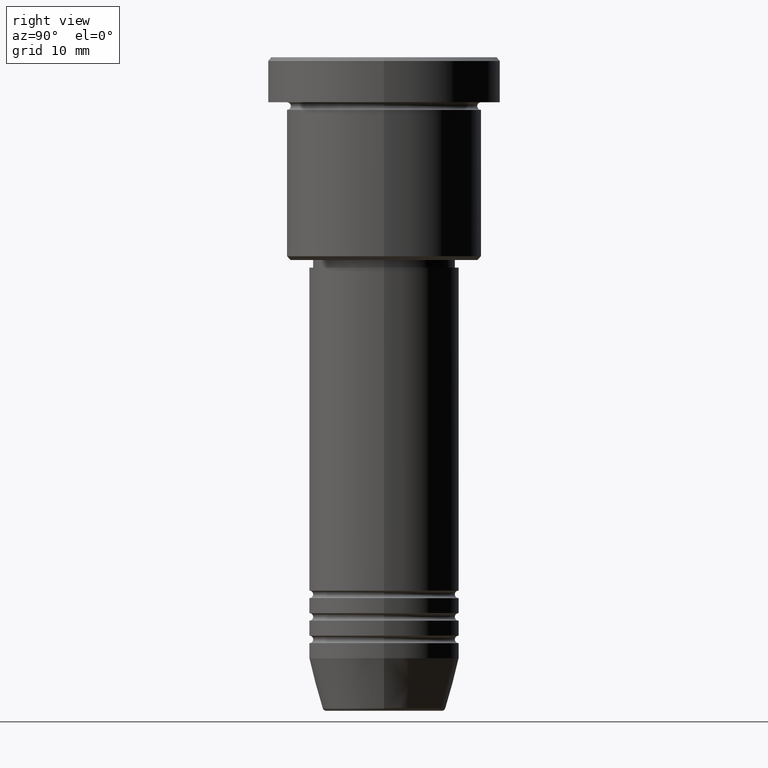
[diagram: clean part render]
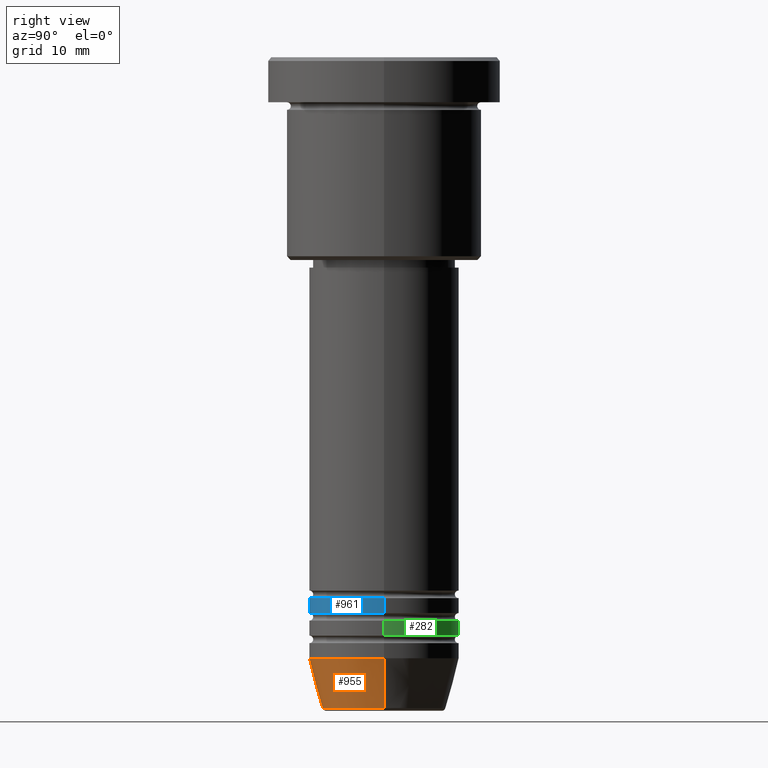
[diagram: same view with three faces highlighted in distinct colors, each labeled with its STEP entity id]
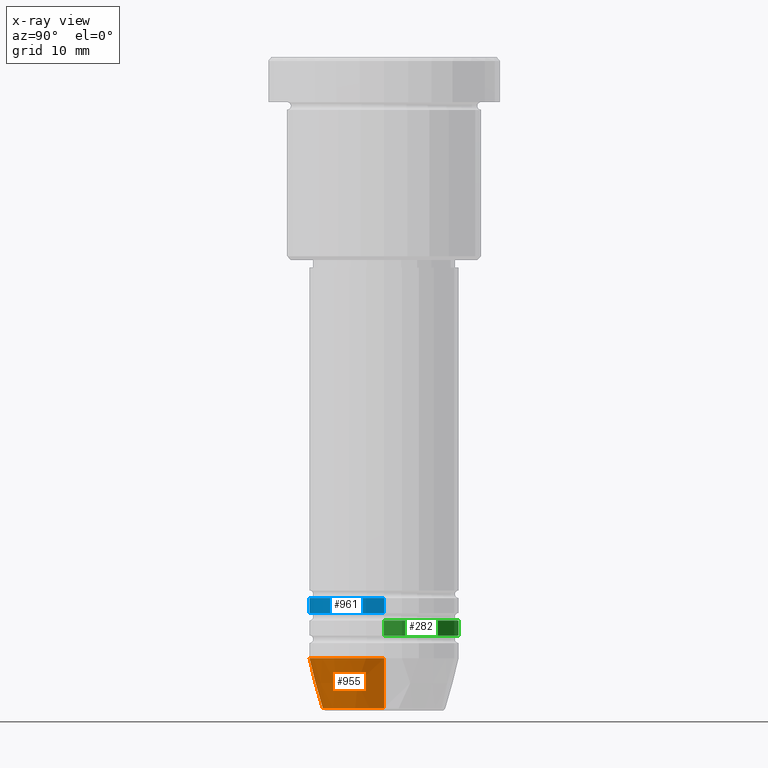
[diagram: x-ray of the same camera — body ghosted, the three highlighted faces saturated]
A machine part, right view with three faces highlighted in distinct colors.
The next image is the same camera in x-ray (body ghosted, the three faces saturated) — at least one of them is partly hidden behind the body in this view.
Their STEP definitions:

[orange] entity #955 — the highlighted conical surface has half-angle 15 deg.
#16 = DIRECTION ( 'NONE',  ( 1.000000000000000000, 0.000000000000000000, 0.000000000000000000 ) ) ;
#25 = CIRCLE ( 'NONE', #289, 10.00000000000000000 ) ;
#37 = CARTESIAN_POINT ( 'NONE',  ( 8.223655072137187716, 0.000000000000000000, -86.62940952255125637 ) ) ;
#69 = ORIENTED_EDGE ( 'NONE', *, *, #1069, .T. ) ;
#101 = VERTEX_POINT ( 'NONE', #268 ) ;
#118 = CARTESIAN_POINT ( 'NONE',  ( 10.00000000000000000, 0.000000000000000000, -79.99999999999998579 ) ) ;
#128 = DIRECTION ( 'NONE',  ( -0.000000000000000000, -0.000000000000000000, 1.000000000000000000 ) ) ;
#155 = VERTEX_POINT ( 'NONE', #37 ) ;
#171 = CIRCLE ( 'NONE', #341, 8.223655072137187716 ) ;
#188 = DIRECTION ( 'NONE',  ( -0.000000000000000000, -0.000000000000000000, 1.000000000000000000 ) ) ;
#267 = CARTESIAN_POINT ( 'NONE',  ( -10.00000000000000000, 1.224646799147353256E-15, -79.99999999999998579 ) ) ;
#268 = CARTESIAN_POINT ( 'NONE',  ( -10.00000000000000000, 1.224646799147353256E-15, -79.99999999999998579 ) ) ;
#275 = DIRECTION ( 'NONE',  ( -0.2588190451025213501, 3.169619151431772337E-17, 0.9659258262890680902 ) ) ;
#289 = AXIS2_PLACEMENT_3D ( 'NONE', #335, #713, #700 ) ;
#329 = EDGE_CURVE ( 'NONE', #1050, #101, #803, .T. ) ;
#331 = CARTESIAN_POINT ( 'NONE',  ( -8.223655072137187716, 1.115877042642911856E-15, -86.62940952255125637 ) ) ;
#335 = CARTESIAN_POINT ( 'NONE',  ( 0.000000000000000000, 0.000000000000000000, -79.99999999999998579 ) ) ;
#341 = AXIS2_PLACEMENT_3D ( 'NONE', #1101, #188, #16 ) ;
#473 = ORIENTED_EDGE ( 'NONE', *, *, #1168, .F. ) ;
#509 = VECTOR ( 'NONE', #275, 1000.000000000000000 ) ;
#527 = CARTESIAN_POINT ( 'NONE',  ( 10.00000000000000000, 0.000000000000000000, -79.99999999999998579 ) ) ;
#591 = EDGE_LOOP ( 'NONE', ( #874, #1071, #69, #473 ) ) ;
#599 = DIRECTION ( 'NONE',  ( 0.2588190451025213501, 0.000000000000000000, 0.9659258262890680902 ) ) ;
#623 = LINE ( 'NONE', #527, #894 ) ;
#637 = FACE_OUTER_BOUND ( 'NONE', #591, .T. ) ;
#664 = CARTESIAN_POINT ( 'NONE',  ( 0.000000000000000000, 0.000000000000000000, -79.99999999999998579 ) ) ;
#700 = DIRECTION ( 'NONE',  ( 1.000000000000000000, 0.000000000000000000, 0.000000000000000000 ) ) ;
#713 = DIRECTION ( 'NONE',  ( -0.000000000000000000, -0.000000000000000000, 1.000000000000000000 ) ) ;
#770 = AXIS2_PLACEMENT_3D ( 'NONE', #664, #128, #1043 ) ;
#803 = LINE ( 'NONE', #267, #509 ) ;
#874 = ORIENTED_EDGE ( 'NONE', *, *, #329, .F. ) ;
#894 = VECTOR ( 'NONE', #599, 1000.000000000000000 ) ;
#902 = EDGE_CURVE ( 'NONE', #1050, #155, #171, .T. ) ;
#955 = ADVANCED_FACE ( 'NONE', ( #637 ), #1073, .T. ) ;
#1037 = VERTEX_POINT ( 'NONE', #118 ) ;
#1043 = DIRECTION ( 'NONE',  ( 1.000000000000000000, 0.000000000000000000, 0.000000000000000000 ) ) ;
#1050 = VERTEX_POINT ( 'NONE', #331 ) ;
#1069 = EDGE_CURVE ( 'NONE', #155, #1037, #623, .T. ) ;
#1071 = ORIENTED_EDGE ( 'NONE', *, *, #902, .T. ) ;
#1073 = CONICAL_SURFACE ( 'NONE', #770, 10.00000000000000000, 0.2617993877991500740 ) ;
#1101 = CARTESIAN_POINT ( 'NONE',  ( 0.000000000000000000, 0.000000000000000000, -86.62940952255125637 ) ) ;
#1168 = EDGE_CURVE ( 'NONE', #101, #1037, #25, .T. ) ;

[blue] entity #961 — the highlighted cylindrical surface (partial cylindrical patch) has radius 10 mm, axis along (-0, -0, 1).
#2 = CARTESIAN_POINT ( 'NONE',  ( 10.00000000000000000, 0.000000000000000000, 0.000000000000000000 ) ) ;
#48 = FACE_OUTER_BOUND ( 'NONE', #67, .T. ) ;
#54 = ORIENTED_EDGE ( 'NONE', *, *, #125, .T. ) ;
#67 = EDGE_LOOP ( 'NONE', ( #315, #430, #54, #327 ) ) ;
#78 = DIRECTION ( 'NONE',  ( 1.000000000000000000, 0.000000000000000000, 0.000000000000000000 ) ) ;
#125 = EDGE_CURVE ( 'NONE', #547, #860, #362, .T. ) ;
#134 = CIRCLE ( 'NONE', #652, 10.00000000000000000 ) ;
#138 = CARTESIAN_POINT ( 'NONE',  ( 10.00000000000000000, 0.000000000000000000, -73.99999999999997158 ) ) ;
#158 = DIRECTION ( 'NONE',  ( 1.000000000000000000, 0.000000000000000000, 0.000000000000000000 ) ) ;
#233 = DIRECTION ( 'NONE',  ( -0.000000000000000000, -0.000000000000000000, 1.000000000000000000 ) ) ;
#236 = VERTEX_POINT ( 'NONE', #366 ) ;
#315 = ORIENTED_EDGE ( 'NONE', *, *, #802, .F. ) ;
#321 = CIRCLE ( 'NONE', #1030, 10.00000000000000000 ) ;
#324 = CARTESIAN_POINT ( 'NONE',  ( -10.00000000000000000, 1.224646799147353256E-15, 0.000000000000000000 ) ) ;
#327 = ORIENTED_EDGE ( 'NONE', *, *, #522, .F. ) ;
#345 = CARTESIAN_POINT ( 'NONE',  ( 10.00000000000000000, 0.000000000000000000, -71.99999999999997158 ) ) ;
#362 = LINE ( 'NONE', #2, #1093 ) ;
#366 = CARTESIAN_POINT ( 'NONE',  ( -10.00000000000000000, 1.224646799147353256E-15, -73.99999999999997158 ) ) ;
#404 = LINE ( 'NONE', #324, #1072 ) ;
#430 = ORIENTED_EDGE ( 'NONE', *, *, #1147, .T. ) ;
#480 = VERTEX_POINT ( 'NONE', #671 ) ;
#517 = CARTESIAN_POINT ( 'NONE',  ( 0.000000000000000000, 0.000000000000000000, -71.99999999999997158 ) ) ;
#522 = EDGE_CURVE ( 'NONE', #480, #860, #134, .T. ) ;
#539 = DIRECTION ( 'NONE',  ( 1.000000000000000000, 0.000000000000000000, 0.000000000000000000 ) ) ;
#547 = VERTEX_POINT ( 'NONE', #138 ) ;
#652 = AXIS2_PLACEMENT_3D ( 'NONE', #517, #1003, #158 ) ;
#671 = CARTESIAN_POINT ( 'NONE',  ( -10.00000000000000000, 1.224646799147353256E-15, -71.99999999999997158 ) ) ;
#744 = AXIS2_PLACEMENT_3D ( 'NONE', #1150, #897, #539 ) ;
#802 = EDGE_CURVE ( 'NONE', #236, #480, #404, .T. ) ;
#856 = CYLINDRICAL_SURFACE ( 'NONE', #744, 10.00000000000000000 ) ;
#860 = VERTEX_POINT ( 'NONE', #345 ) ;
#897 = DIRECTION ( 'NONE',  ( -0.000000000000000000, -0.000000000000000000, 1.000000000000000000 ) ) ;
#961 = ADVANCED_FACE ( 'NONE', ( #48 ), #856, .T. ) ;
#970 = CARTESIAN_POINT ( 'NONE',  ( 0.000000000000000000, 0.000000000000000000, -73.99999999999997158 ) ) ;
#1003 = DIRECTION ( 'NONE',  ( -0.000000000000000000, -0.000000000000000000, 1.000000000000000000 ) ) ;
#1004 = DIRECTION ( 'NONE',  ( -0.000000000000000000, -0.000000000000000000, 1.000000000000000000 ) ) ;
#1030 = AXIS2_PLACEMENT_3D ( 'NONE', #970, #1162, #78 ) ;
#1072 = VECTOR ( 'NONE', #233, 1000.000000000000000 ) ;
#1093 = VECTOR ( 'NONE', #1004, 1000.000000000000000 ) ;
#1147 = EDGE_CURVE ( 'NONE', #236, #547, #321, .T. ) ;
#1150 = CARTESIAN_POINT ( 'NONE',  ( 0.000000000000000000, 0.000000000000000000, 0.000000000000000000 ) ) ;
#1162 = DIRECTION ( 'NONE',  ( -0.000000000000000000, -0.000000000000000000, 1.000000000000000000 ) ) ;

[green] entity #282 — the highlighted cylindrical surface (partial cylindrical patch) has radius 10 mm, axis along (-0, -0, 1).
#29 = DIRECTION ( 'NONE',  ( -0.000000000000000000, -0.000000000000000000, 1.000000000000000000 ) ) ;
#60 = LINE ( 'NONE', #1041, #848 ) ;
#84 = CARTESIAN_POINT ( 'NONE',  ( -10.00000000000000000, 1.224646799147353256E-15, -74.99999999999997158 ) ) ;
#86 = DIRECTION ( 'NONE',  ( 1.000000000000000000, 0.000000000000000000, 0.000000000000000000 ) ) ;
#98 = LINE ( 'NONE', #460, #670 ) ;
#110 = VERTEX_POINT ( 'NONE', #903 ) ;
#120 = EDGE_CURVE ( 'NONE', #1046, #1180, #409, .T. ) ;
#142 = VERTEX_POINT ( 'NONE', #746 ) ;
#167 = DIRECTION ( 'NONE',  ( -0.000000000000000000, -0.000000000000000000, 1.000000000000000000 ) ) ;
#203 = FACE_OUTER_BOUND ( 'NONE', #620, .T. ) ;
#209 = CYLINDRICAL_SURFACE ( 'NONE', #1129, 10.00000000000000000 ) ;
#215 = CARTESIAN_POINT ( 'NONE',  ( 0.000000000000000000, 0.000000000000000000, -76.99999999999997158 ) ) ;
#217 = CARTESIAN_POINT ( 'NONE',  ( 0.000000000000000000, 0.000000000000000000, 0.000000000000000000 ) ) ;
#277 = ORIENTED_EDGE ( 'NONE', *, *, #824, .T. ) ;
#282 = ADVANCED_FACE ( 'NONE', ( #203 ), #209, .T. ) ;
#323 = CIRCLE ( 'NONE', #968, 10.00000000000000000 ) ;
#409 = CIRCLE ( 'NONE', #844, 10.00000000000000000 ) ;
#444 = ORIENTED_EDGE ( 'NONE', *, *, #678, .T. ) ;
#460 = CARTESIAN_POINT ( 'NONE',  ( 10.00000000000000000, 0.000000000000000000, 0.000000000000000000 ) ) ;
#514 = EDGE_CURVE ( 'NONE', #110, #1046, #98, .T. ) ;
#576 = DIRECTION ( 'NONE',  ( 1.000000000000000000, 0.000000000000000000, 0.000000000000000000 ) ) ;
#620 = EDGE_LOOP ( 'NONE', ( #444, #277, #1109, #916 ) ) ;
#670 = VECTOR ( 'NONE', #1128, 1000.000000000000000 ) ;
#678 = EDGE_CURVE ( 'NONE', #110, #142, #323, .T. ) ;
#746 = CARTESIAN_POINT ( 'NONE',  ( -10.00000000000000000, 1.224646799147353256E-15, -76.99999999999997158 ) ) ;
#758 = DIRECTION ( 'NONE',  ( 1.000000000000000000, 0.000000000000000000, 0.000000000000000000 ) ) ;
#811 = CARTESIAN_POINT ( 'NONE',  ( 0.000000000000000000, 0.000000000000000000, -74.99999999999997158 ) ) ;
#824 = EDGE_CURVE ( 'NONE', #142, #1180, #60, .T. ) ;
#826 = DIRECTION ( 'NONE',  ( -0.000000000000000000, -0.000000000000000000, 1.000000000000000000 ) ) ;
#844 = AXIS2_PLACEMENT_3D ( 'NONE', #811, #167, #86 ) ;
#848 = VECTOR ( 'NONE', #859, 1000.000000000000000 ) ;
#859 = DIRECTION ( 'NONE',  ( -0.000000000000000000, -0.000000000000000000, 1.000000000000000000 ) ) ;
#903 = CARTESIAN_POINT ( 'NONE',  ( 10.00000000000000000, 0.000000000000000000, -76.99999999999997158 ) ) ;
#916 = ORIENTED_EDGE ( 'NONE', *, *, #514, .F. ) ;
#968 = AXIS2_PLACEMENT_3D ( 'NONE', #215, #826, #758 ) ;
#1041 = CARTESIAN_POINT ( 'NONE',  ( -10.00000000000000000, 1.224646799147353256E-15, 0.000000000000000000 ) ) ;
#1046 = VERTEX_POINT ( 'NONE', #1081 ) ;
#1081 = CARTESIAN_POINT ( 'NONE',  ( 10.00000000000000000, 0.000000000000000000, -74.99999999999997158 ) ) ;
#1109 = ORIENTED_EDGE ( 'NONE', *, *, #120, .F. ) ;
#1128 = DIRECTION ( 'NONE',  ( -0.000000000000000000, -0.000000000000000000, 1.000000000000000000 ) ) ;
#1129 = AXIS2_PLACEMENT_3D ( 'NONE', #217, #29, #576 ) ;
#1180 = VERTEX_POINT ( 'NONE', #84 ) ;